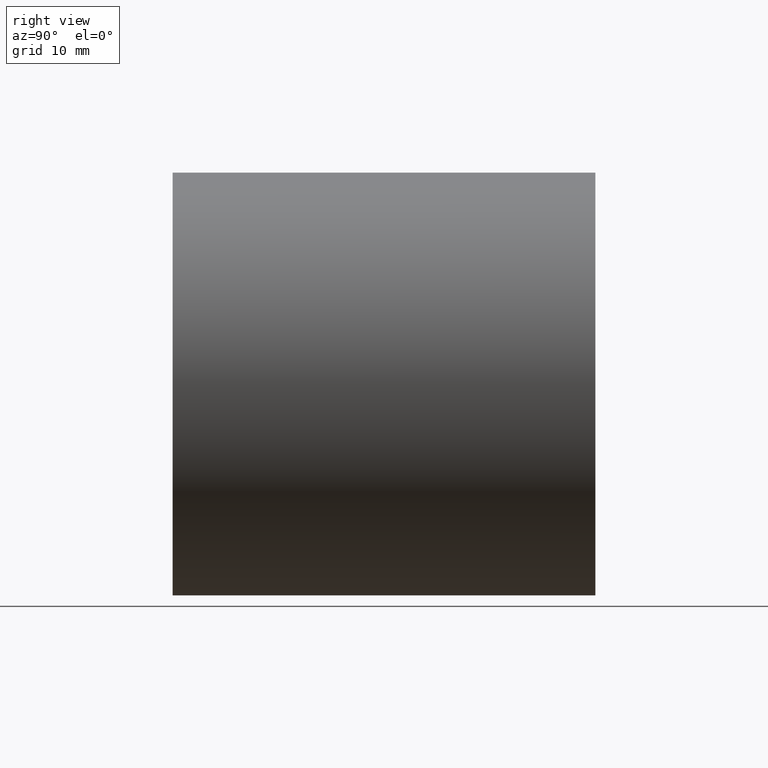
[diagram: clean part render]
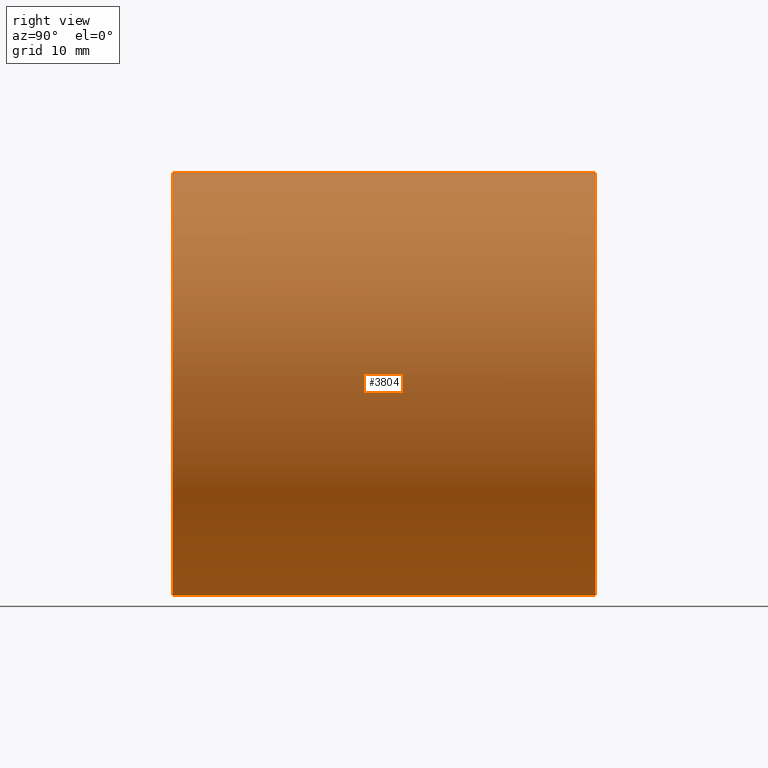
[diagram: same view with one face highlighted and labeled with its STEP entity id]
A machine part, right view. The second image highlights one B-rep face of the part: STEP entity #3804.
In plain terms, the highlighted cylindrical surface (partial cylindrical patch) has radius 20 mm, axis along (-0, 1, -0).
Its self-contained STEP definition (entity closure, byte-faithful):
#401 = VECTOR ( 'NONE', #14401, 1000.000000000000000 ) ;
#403 = CARTESIAN_POINT ( 'NONE',  ( 2.449293598294708485E-15, 40.00000000000000000, -20.00000000000001776 ) ) ;
#425 = ORIENTED_EDGE ( 'NONE', *, *, #11831, .T. ) ;
#453 = EDGE_LOOP ( 'NONE', ( #425, #6184, #11916, #5422 ) ) ;
#454 = DIRECTION ( 'NONE',  ( 0.000000000000000000, 0.000000000000000000, 1.000000000000000000 ) ) ;
#934 = LINE ( 'NONE', #4705, #401 ) ;
#1522 = CARTESIAN_POINT ( 'NONE',  ( 0.000000000000000000, 40.00000000000000000, 0.000000000000000000 ) ) ;
#1673 = EDGE_CURVE ( 'NONE', #12537, #9663, #6018, .T. ) ;
#2143 = LINE ( 'NONE', #9937, #13534 ) ;
#3804 = ADVANCED_FACE ( 'NONE', ( #5428 ), #8211, .T. ) ;
#4117 = DIRECTION ( 'NONE',  ( -0.000000000000000000, 1.000000000000000000, -0.000000000000000000 ) ) ;
#4324 = DIRECTION ( 'NONE',  ( -0.000000000000000000, 1.000000000000000000, -0.000000000000000000 ) ) ;
#4705 = CARTESIAN_POINT ( 'NONE',  ( 2.449293598294707302E-15, 40.00000000000000000, -20.00000000000000711 ) ) ;
#5041 = EDGE_CURVE ( 'NONE', #14353, #9663, #934, .T. ) ;
#5192 = CARTESIAN_POINT ( 'NONE',  ( 0.000000000000000000, 40.00000000000000000, 20.00000000000001421 ) ) ;
#5422 = ORIENTED_EDGE ( 'NONE', *, *, #11910, .F. ) ;
#5428 = FACE_OUTER_BOUND ( 'NONE', #453, .T. ) ;
#5869 = AXIS2_PLACEMENT_3D ( 'NONE', #1522, #14578, #7436 ) ;
#6018 = CIRCLE ( 'NONE', #10250, 20.00000000000001421 ) ;
#6184 = ORIENTED_EDGE ( 'NONE', *, *, #5041, .T. ) ;
#6225 = DIRECTION ( 'NONE',  ( -0.000000000000000000, 1.000000000000000000, -0.000000000000000000 ) ) ;
#7436 = DIRECTION ( 'NONE',  ( 0.000000000000000000, 0.000000000000000000, 1.000000000000000000 ) ) ;
#7550 = CIRCLE ( 'NONE', #12996, 20.00000000000000000 ) ;
#8211 = CYLINDRICAL_SURFACE ( 'NONE', #5869, 20.00000000000000711 ) ;
#9159 = CARTESIAN_POINT ( 'NONE',  ( 0.000000000000000000, 40.00000000000000000, 0.000000000000000000 ) ) ;
#9210 = DIRECTION ( 'NONE',  ( 0.000000000000000000, 0.000000000000000000, 1.000000000000000000 ) ) ;
#9663 = VERTEX_POINT ( 'NONE', #403 ) ;
#9937 = CARTESIAN_POINT ( 'NONE',  ( 0.000000000000000000, 40.00000000000000000, 20.00000000000000711 ) ) ;
#10250 = AXIS2_PLACEMENT_3D ( 'NONE', #9159, #4324, #9210 ) ;
#11831 = EDGE_CURVE ( 'NONE', #12767, #14353, #7550, .T. ) ;
#11910 = EDGE_CURVE ( 'NONE', #12767, #12537, #2143, .T. ) ;
#11916 = ORIENTED_EDGE ( 'NONE', *, *, #1673, .F. ) ;
#12537 = VERTEX_POINT ( 'NONE', #5192 ) ;
#12617 = CARTESIAN_POINT ( 'NONE',  ( 0.000000000000000000, 0.000000000000000000, 20.00000000000000000 ) ) ;
#12767 = VERTEX_POINT ( 'NONE', #12617 ) ;
#12996 = AXIS2_PLACEMENT_3D ( 'NONE', #14693, #6225, #454 ) ;
#13534 = VECTOR ( 'NONE', #4117, 1000.000000000000000 ) ;
#13748 = CARTESIAN_POINT ( 'NONE',  ( 2.449293598294706907E-15, 0.000000000000000000, -20.00000000000000000 ) ) ;
#14353 = VERTEX_POINT ( 'NONE', #13748 ) ;
#14401 = DIRECTION ( 'NONE',  ( -0.000000000000000000, 1.000000000000000000, -0.000000000000000000 ) ) ;
#14578 = DIRECTION ( 'NONE',  ( -0.000000000000000000, 1.000000000000000000, -0.000000000000000000 ) ) ;
#14693 = CARTESIAN_POINT ( 'NONE',  ( 0.000000000000000000, 0.000000000000000000, 0.000000000000000000 ) ) ;